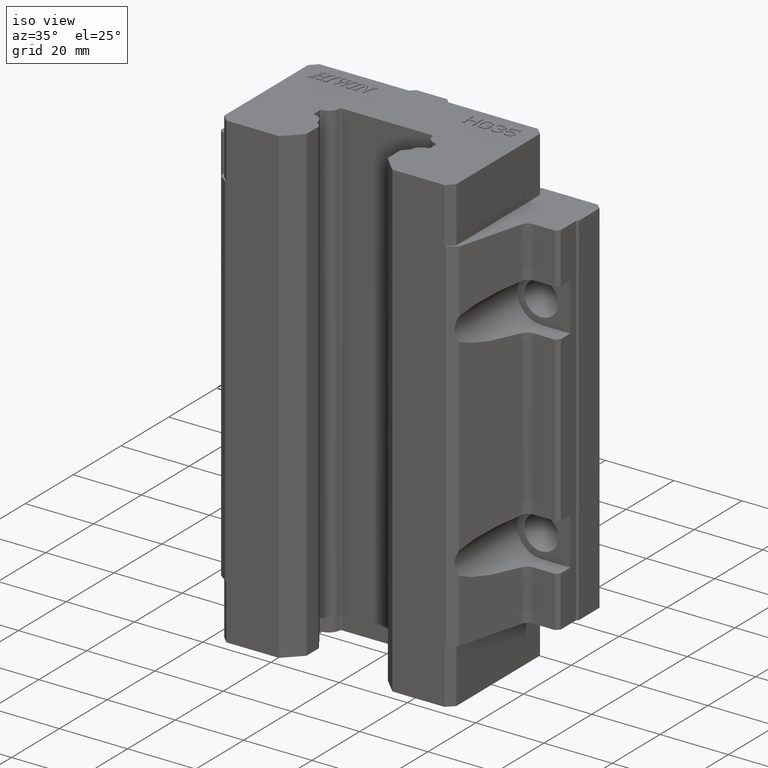
[diagram: clean part render]
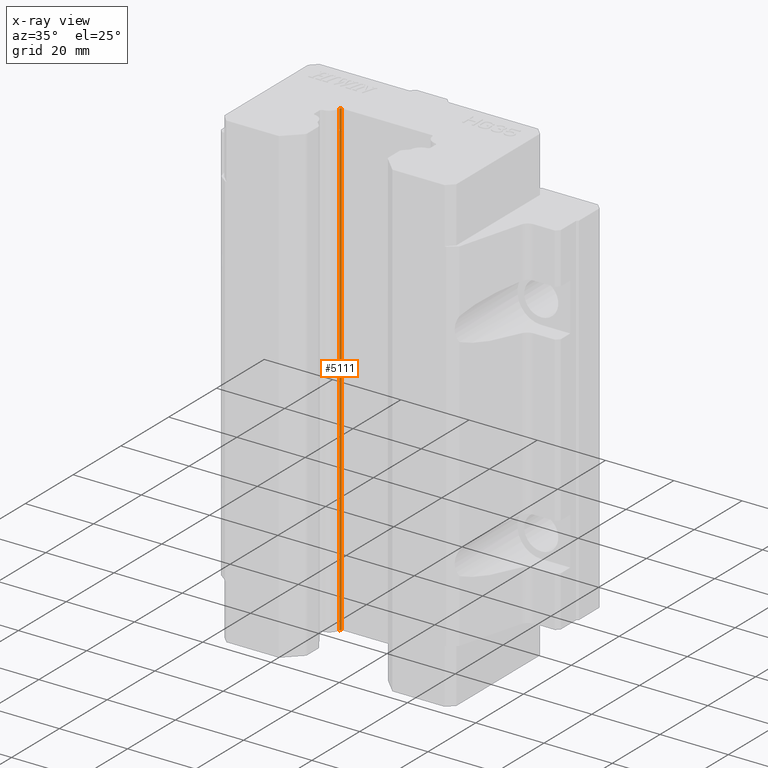
[diagram: x-ray — body ghosted, one internal face saturated and labeled with its STEP entity id]
A machine part, iso view, then the same camera in x-ray: the body is ghosted and one INTERNAL B-rep face — a face not visible from any outside direction — is saturated and labeled: STEP entity #5111.
In plain terms, the highlighted planar face has unit normal (0.7071, -0.7071, 0).
Its self-contained STEP definition (entity closure, byte-faithful):
#1280 = VERTEX_POINT ( 'NONE', #5757 ) ;
#3928 = DIRECTION ( 'NONE',  ( 0.0000000000000000000, 0.0000000000000000000, -1.000000000000000000 ) ) ;
#3929 = VECTOR ( 'NONE', #3928, 1000.000000000000000 ) ;
#3930 = CARTESIAN_POINT ( 'NONE',  ( -13.62681920692000000, -0.3753978506847000000, -52.90000000000000600 ) ) ;
#3931 = LINE ( 'NONE', #3930, #3929 ) ;
#3932 = CARTESIAN_POINT ( 'NONE',  ( -13.62681920692195400, -0.3753978506866541000, -69.09999999999999400 ) ) ;
#5079 = EDGE_CURVE ( 'NONE', #5080, #1280, #7272, .T. ) ;
#5080 = VERTEX_POINT ( 'NONE', #7268 ) ;
#5096 = VERTEX_POINT ( 'NONE', #7257 ) ;
#5102 = ORIENTED_EDGE ( 'NONE', *, *, #5160, .T. ) ;
#5108 = EDGE_LOOP ( 'NONE', ( #5102, #5156, #5134, #5144 ) ) ;
#5111 = ADVANCED_FACE ( 'NONE', ( #7248 ), #7247, .T. ) ;
#5134 = ORIENTED_EDGE ( 'NONE', *, *, #5079, .T. ) ;
#5144 = ORIENTED_EDGE ( 'NONE', *, *, #14168, .T. ) ;
#5154 = EDGE_CURVE ( 'NONE', #5080, #5096, #7288, .T. ) ;
#5156 = ORIENTED_EDGE ( 'NONE', *, *, #5154, .F. ) ;
#5160 = EDGE_CURVE ( 'NONE', #14167, #5096, #7343, .T. ) ;
#5757 = CARTESIAN_POINT ( 'NONE',  ( -13.62681920692195400, -0.3753978506866547700, 69.09999999999999400 ) ) ;
#7243 = DIRECTION ( 'NONE',  ( 0.7071067811865975300, 0.7071067811864976100, 0.0000000000000000000 ) ) ;
#7244 = DIRECTION ( 'NONE',  ( 0.7071067811864976100, -0.7071067811865975300, 0.0000000000000000000 ) ) ;
#7245 = CARTESIAN_POINT ( 'NONE',  ( -13.62681920692000000, -0.3753978506847000000, -52.90000000000000600 ) ) ;
#7246 = AXIS2_PLACEMENT_3D ( 'NONE', #7245, #7244, #7243 ) ;
#7247 = PLANE ( 'NONE',  #7246 ) ;
#7248 = FACE_OUTER_BOUND ( 'NONE', #5108, .T. ) ;
#7257 = CARTESIAN_POINT ( 'NONE',  ( -13.25142135623960400, 3.614007241618347900E-017, -69.09999999999999400 ) ) ;
#7268 = CARTESIAN_POINT ( 'NONE',  ( -13.25142135623762300, 4.065758146820641600E-017, 69.10000000000002300 ) ) ;
#7269 = DIRECTION ( 'NONE',  ( -0.7071067811865975300, -0.7071067811864976100, 0.0000000000000000000 ) ) ;
#7270 = VECTOR ( 'NONE', #7269, 1000.000000000000100 ) ;
#7271 = CARTESIAN_POINT ( 'NONE',  ( -13.62681920692000000, -0.3753978506847000000, 69.09999999999999400 ) ) ;
#7272 = LINE ( 'NONE', #7271, #7270 ) ;
#7285 = DIRECTION ( 'NONE',  ( 0.0000000000000000000, 0.0000000000000000000, -1.000000000000000000 ) ) ;
#7286 = VECTOR ( 'NONE', #7285, 1000.000000000000000 ) ;
#7287 = CARTESIAN_POINT ( 'NONE',  ( -13.25142135624000000, 0.0000000000000000000, -52.90000000000000600 ) ) ;
#7288 = LINE ( 'NONE', #7287, #7286 ) ;
#7340 = DIRECTION ( 'NONE',  ( 0.7071067811821210000, 0.7071067811909741400, 0.0000000000000000000 ) ) ;
#7341 = VECTOR ( 'NONE', #7340, 1000.000000000000100 ) ;
#7342 = CARTESIAN_POINT ( 'NONE',  ( -13.62681920692000000, -0.3753978506847000000, -69.09999999999999400 ) ) ;
#7343 = LINE ( 'NONE', #7342, #7341 ) ;
#14167 = VERTEX_POINT ( 'NONE', #3932 ) ;
#14168 = EDGE_CURVE ( 'NONE', #1280, #14167, #3931, .T. ) ;